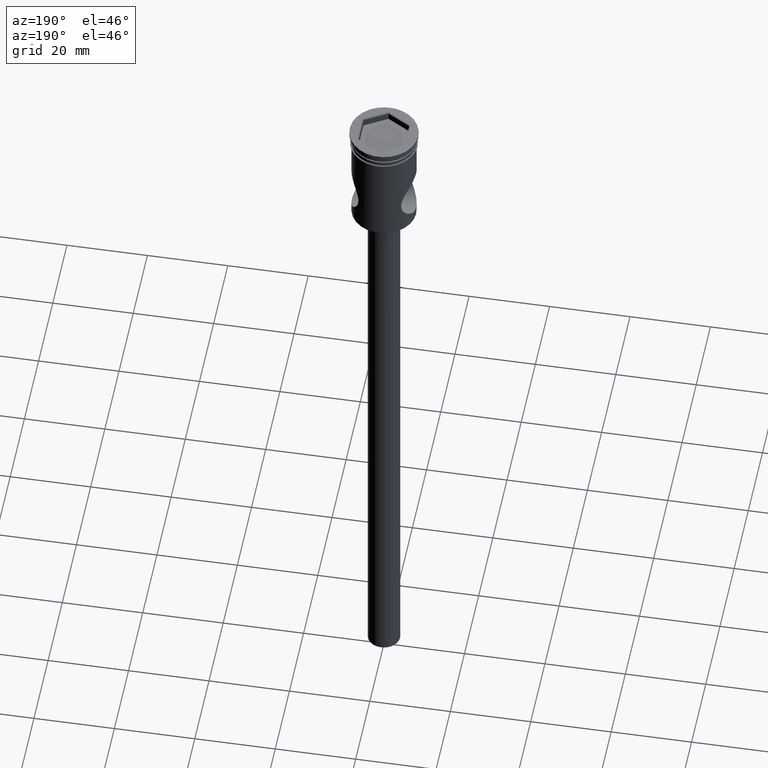
[diagram: clean part render]
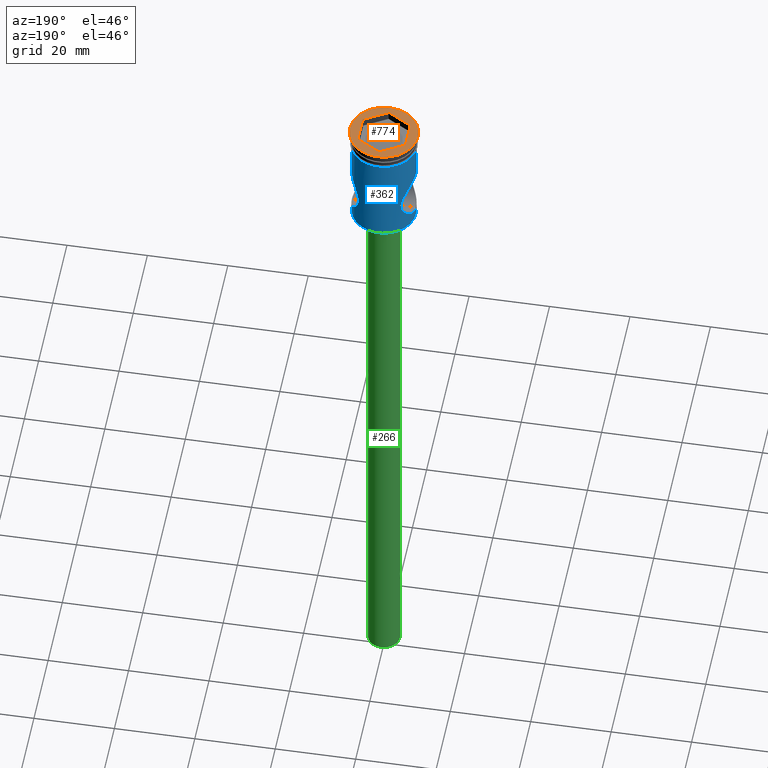
[diagram: same view with three faces highlighted in distinct colors, each labeled with its STEP entity id]
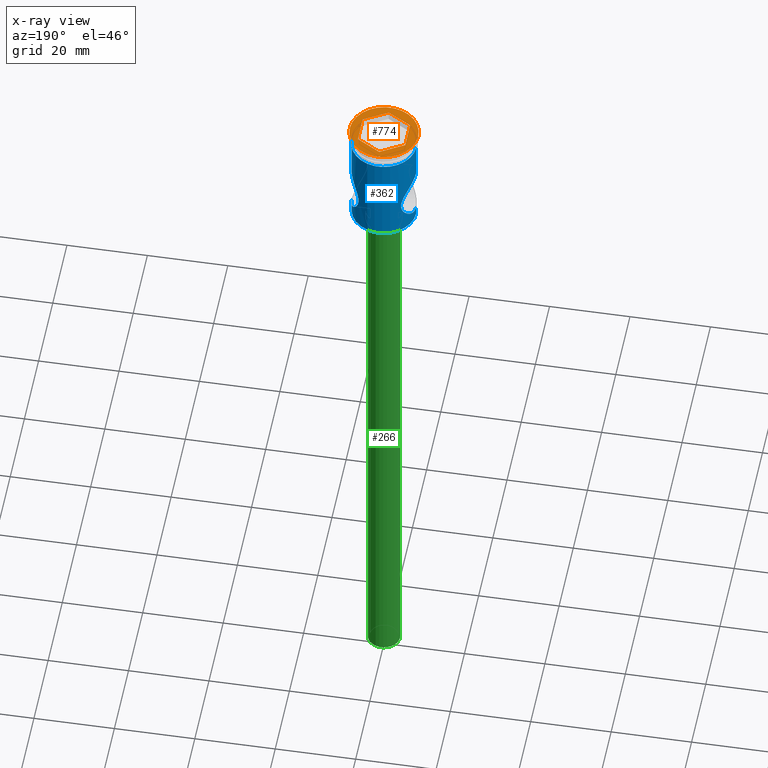
[diagram: x-ray of the same camera — body ghosted, the three highlighted faces saturated]
A machine part, auxiliary view with three faces highlighted in distinct colors.
The next image is the same camera in x-ray (body ghosted, the three faces saturated) — at least one of them is partly hidden behind the body in this view.
Their STEP definitions:

[orange] entity #774 — the highlighted planar face has unit normal (0, -0, 1).
#11 = CARTESIAN_POINT ( 'NONE',  ( -2.007024465603783099E-15, -6.812733176437579807, 0.000000000000000000 ) ) ;
#18 = VECTOR ( 'NONE', #1480, 1000.000000000000000 ) ;
#41 = AXIS2_PLACEMENT_3D ( 'NONE', #207, #1154, #679 ) ;
#59 = EDGE_LOOP ( 'NONE', ( #1249, #1351 ) ) ;
#81 = VECTOR ( 'NONE', #702, 1000.000000000000000 ) ;
#89 = ORIENTED_EDGE ( 'NONE', *, *, #1296, .T. ) ;
#118 = EDGE_CURVE ( 'NONE', #1260, #1479, #769, .T. ) ;
#134 = VECTOR ( 'NONE', #239, 1000.000000000000000 ) ;
#142 = ORIENTED_EDGE ( 'NONE', *, *, #1251, .T. ) ;
#159 = CARTESIAN_POINT ( 'NONE',  ( -0.09999999999999933942, 6.754998149518617545, 0.000000000000000000 ) ) ;
#170 = CARTESIAN_POINT ( 'NONE',  ( -5.899999999999997691, -3.406366588218790348, 0.000000000000000000 ) ) ;
#199 = CARTESIAN_POINT ( 'NONE',  ( 5.899999999999998579, 3.406366588218789904, 0.000000000000000000 ) ) ;
#207 = CARTESIAN_POINT ( 'NONE',  ( 0.000000000000000000, 0.000000000000000000, 0.000000000000000000 ) ) ;
#224 = EDGE_CURVE ( 'NONE', #841, #1109, #245, .T. ) ;
#229 = CARTESIAN_POINT ( 'NONE',  ( 5.899999999999996803, -3.290896534380868488, 0.000000000000000000 ) ) ;
#239 = DIRECTION ( 'NONE',  ( -0.8660254037844387076, -0.4999999999999998890, 0.000000000000000000 ) ) ;
#245 = CIRCLE ( 'NONE', #824, 8.500000000000000000 ) ;
#306 = ORIENTED_EDGE ( 'NONE', *, *, #118, .T. ) ;
#330 = CARTESIAN_POINT ( 'NONE',  ( -5.899999999999996803, 3.290896534380865823, 0.000000000000000000 ) ) ;
#368 = EDGE_LOOP ( 'NONE', ( #89, #306, #142, #1253, #1115, #806 ) ) ;
#424 = EDGE_CURVE ( 'NONE', #916, #1221, #1411, .T. ) ;
#430 = CARTESIAN_POINT ( 'NONE',  ( 5.799999999999998934, 3.464101615137752610, 0.000000000000000000 ) ) ;
#470 = CARTESIAN_POINT ( 'NONE',  ( 5.899999999999996803, -3.406366588218789460, 0.000000000000000000 ) ) ;
#529 = EDGE_CURVE ( 'NONE', #668, #916, #1499, .T. ) ;
#573 = FACE_BOUND ( 'NONE', #368, .T. ) ;
#629 = LINE ( 'NONE', #159, #708 ) ;
#668 = VERTEX_POINT ( 'NONE', #869 ) ;
#672 = FACE_OUTER_BOUND ( 'NONE', #59, .T. ) ;
#679 = DIRECTION ( 'NONE',  ( 1.000000000000000000, 0.000000000000000000, 0.000000000000000000 ) ) ;
#702 = DIRECTION ( 'NONE',  ( -3.953459470360945130E-16, -1.000000000000000000, 0.000000000000000000 ) ) ;
#705 = CIRCLE ( 'NONE', #1294, 8.500000000000000000 ) ;
#708 = VECTOR ( 'NONE', #1239, 1000.000000000000114 ) ;
#729 = LINE ( 'NONE', #1225, #1364 ) ;
#763 = VERTEX_POINT ( 'NONE', #11 ) ;
#769 = LINE ( 'NONE', #330, #18 ) ;
#774 = ADVANCED_FACE ( 'NONE', ( #573, #672 ), #1160, .T. ) ;
#786 = EDGE_CURVE ( 'NONE', #1109, #841, #705, .T. ) ;
#806 = ORIENTED_EDGE ( 'NONE', *, *, #1173, .T. ) ;
#822 = CARTESIAN_POINT ( 'NONE',  ( -8.500000000000000000, 1.040949779275250140E-15, 0.000000000000000000 ) ) ;
#824 = AXIS2_PLACEMENT_3D ( 'NONE', #1460, #1485, #1350 ) ;
#829 = LINE ( 'NONE', #941, #134 ) ;
#841 = VERTEX_POINT ( 'NONE', #924 ) ;
#869 = CARTESIAN_POINT ( 'NONE',  ( -5.954239560892097332E-16, 6.812733176437579807, 0.000000000000000000 ) ) ;
#900 = DIRECTION ( 'NONE',  ( 0.8660254037844388186, -0.4999999999999997780, 0.000000000000000000 ) ) ;
#910 = DIRECTION ( 'NONE',  ( 1.000000000000000000, 0.000000000000000000, 0.000000000000000000 ) ) ;
#916 = VERTEX_POINT ( 'NONE', #199 ) ;
#924 = CARTESIAN_POINT ( 'NONE',  ( 8.500000000000000000, 0.000000000000000000, 0.000000000000000000 ) ) ;
#930 = CARTESIAN_POINT ( 'NONE',  ( -5.899999999999996803, 3.406366588218790348, 0.000000000000000000 ) ) ;
#941 = CARTESIAN_POINT ( 'NONE',  ( 0.09999999999999691080, -6.754998149518617545, 0.000000000000000000 ) ) ;
#992 = DIRECTION ( 'NONE',  ( -0.8660254037844385966, 0.5000000000000001110, 0.000000000000000000 ) ) ;
#1109 = VERTEX_POINT ( 'NONE', #822 ) ;
#1115 = ORIENTED_EDGE ( 'NONE', *, *, #424, .T. ) ;
#1154 = DIRECTION ( 'NONE',  ( 0.000000000000000000, -0.000000000000000000, 1.000000000000000000 ) ) ;
#1160 = PLANE ( 'NONE',  #41 ) ;
#1173 = EDGE_CURVE ( 'NONE', #1221, #763, #829, .T. ) ;
#1221 = VERTEX_POINT ( 'NONE', #470 ) ;
#1225 = CARTESIAN_POINT ( 'NONE',  ( -5.799999999999998934, -3.464101615137751722, 0.000000000000000000 ) ) ;
#1239 = DIRECTION ( 'NONE',  ( 0.8660254037844385966, 0.4999999999999999445, 0.000000000000000000 ) ) ;
#1249 = ORIENTED_EDGE ( 'NONE', *, *, #224, .T. ) ;
#1251 = EDGE_CURVE ( 'NONE', #1479, #668, #629, .T. ) ;
#1253 = ORIENTED_EDGE ( 'NONE', *, *, #529, .T. ) ;
#1260 = VERTEX_POINT ( 'NONE', #170 ) ;
#1294 = AXIS2_PLACEMENT_3D ( 'NONE', #1519, #1508, #910 ) ;
#1296 = EDGE_CURVE ( 'NONE', #763, #1260, #729, .T. ) ;
#1350 = DIRECTION ( 'NONE',  ( 1.000000000000000000, 0.000000000000000000, 0.000000000000000000 ) ) ;
#1351 = ORIENTED_EDGE ( 'NONE', *, *, #786, .T. ) ;
#1364 = VECTOR ( 'NONE', #992, 1000.000000000000114 ) ;
#1411 = LINE ( 'NONE', #229, #81 ) ;
#1460 = CARTESIAN_POINT ( 'NONE',  ( 0.000000000000000000, 0.000000000000000000, 0.000000000000000000 ) ) ;
#1479 = VERTEX_POINT ( 'NONE', #930 ) ;
#1480 = DIRECTION ( 'NONE',  ( 1.317819823453649034E-16, 1.000000000000000000, 0.000000000000000000 ) ) ;
#1485 = DIRECTION ( 'NONE',  ( -0.000000000000000000, -0.000000000000000000, 1.000000000000000000 ) ) ;
#1486 = VECTOR ( 'NONE', #900, 1000.000000000000114 ) ;
#1499 = LINE ( 'NONE', #430, #1486 ) ;
#1508 = DIRECTION ( 'NONE',  ( -0.000000000000000000, -0.000000000000000000, 1.000000000000000000 ) ) ;
#1519 = CARTESIAN_POINT ( 'NONE',  ( 0.000000000000000000, 0.000000000000000000, 0.000000000000000000 ) ) ;

[blue] entity #362 — the highlighted cylindrical surface (edge-blend (fillet) strip) has radius 8 mm, axis along (-0, -0, 1).
#5 = VERTEX_POINT ( 'NONE', #932 ) ;
#10 = ORIENTED_EDGE ( 'NONE', *, *, #838, .F. ) ;
#13 = FACE_OUTER_BOUND ( 'NONE', #1326, .T. ) ;
#19 = CARTESIAN_POINT ( 'NONE',  ( -6.096832542624039064, 5.181052271612227145, -22.03201423696314265 ) ) ;
#27 = CARTESIAN_POINT ( 'NONE',  ( 5.303431297491207452, 5.989541423528398134, -18.59082079987659952 ) ) ;
#28 = DIRECTION ( 'NONE',  ( -0.000000000000000000, -0.000000000000000000, 1.000000000000000000 ) ) ;
#35 = EDGE_CURVE ( 'NONE', #255, #1107, #1058, .T. ) ;
#71 = CARTESIAN_POINT ( 'NONE',  ( 6.428305707969257377, 4.769535948342530141, -15.34044057477574263 ) ) ;
#74 = CARTESIAN_POINT ( 'NONE',  ( 7.999999999999996447, 0.000000000000000000, 0.000000000000000000 ) ) ;
#88 = CARTESIAN_POINT ( 'NONE',  ( -7.959626168830804538, 0.8288481689406965724, -24.94607871179749026 ) ) ;
#98 = ORIENTED_EDGE ( 'NONE', *, *, #771, .T. ) ;
#104 = CARTESIAN_POINT ( 'NONE',  ( -7.390764062597866335, 3.081727328898060225, -24.16219223809560290 ) ) ;
#106 = LINE ( 'NONE', #1483, #439 ) ;
#119 = B_SPLINE_CURVE_WITH_KNOTS ( 'NONE', 3,
 ( #1271, #790, #1289, #955, #1056, #714, #352, #931, #1050, #1400, #584, #237, #799, #334, #1179, #1089, #590, #367, #1192, #460, #1295, #1079, #1065, #141, #1414, #963, #497, #973, #363, #813, #455, #19, #1313, #357, #1190, #922, #794, #680, #709, #104, #1292, #688, #579, #925, #681, #447, #88, #537, #544, #1039 ),
 .UNSPECIFIED., .F., .F.,
 ( 4, 2, 2, 2, 2, 2, 2, 2, 2, 2, 2, 2, 2, 2, 2, 2, 2, 2, 2, 2, 2, 2, 2, 2, 4 ),
 ( 0.01965158138171595875, 0.02026440806685870719, 0.02087723475200145562, 0.02149006143714420405, 0.02210288812228695249, 0.02332854149257245283, 0.02455419486285795316, 0.02577984823314345697, 0.02700550160342895384, 0.02761832828857171268, 0.02823115497371446458, 0.02884398165885721996, 0.02945680834399997533, 0.03068246171428548608, 0.03190811508457099682, 0.03252094176971375566, 0.03313376845485650757, 0.03435942182514201831, 0.03497224851028477716, 0.03558507519542753600, 0.03681072856571306062, 0.03742355525085581947, 0.03803638193599857831, 0.03864920862114134409, 0.03926203530628410293 ),
 .UNSPECIFIED. ) ;
#129 = CARTESIAN_POINT ( 'NONE',  ( 7.095043372362062506, 3.712647680833710329, -23.72917063698660911 ) ) ;
#140 = ORIENTED_EDGE ( 'NONE', *, *, #1164, .T. ) ;
#141 = CARTESIAN_POINT ( 'NONE',  ( -5.303887827319022641, 5.989138807782576457, -18.58493257538529875 ) ) ;
#145 = CARTESIAN_POINT ( 'NONE',  ( 7.748219018226238042, 2.000946089715710308, -13.33991246093565231 ) ) ;
#146 = CARTESIAN_POINT ( 'NONE',  ( -7.999999999999996447, 0.000000000000000000, -25.00000000000000000 ) ) ;
#180 = LINE ( 'NONE', #74, #1197 ) ;
#212 = CARTESIAN_POINT ( 'NONE',  ( 5.527830583457348013, 5.783619756404971390, -20.60895157510370268 ) ) ;
#228 = AXIS2_PLACEMENT_3D ( 'NONE', #1407, #28, #1324 ) ;
#237 = CARTESIAN_POINT ( 'NONE',  ( -7.094299755750172132, 3.714105956844027556, -14.27193636968089585 ) ) ;
#238 = CARTESIAN_POINT ( 'NONE',  ( 7.967750386662298290, 0.8225813075346128933, -24.95718867133071939 ) ) ;
#244 = CARTESIAN_POINT ( 'NONE',  ( 5.717260744181801968, 5.596776624407745260, -16.82891779856496584 ) ) ;
#255 = VERTEX_POINT ( 'NONE', #652 ) ;
#280 = EDGE_CURVE ( 'NONE', #5, #554, #1139, .T. ) ;
#287 = CARTESIAN_POINT ( 'NONE',  ( 5.291508588819593406, 5.999994737873667106, -19.40979141361455262 ) ) ;
#310 = CARTESIAN_POINT ( 'NONE',  ( -8.000000000000000000, 9.797174393178825657E-16, -3.999999999999997335 ) ) ;
#324 = CARTESIAN_POINT ( 'NONE',  ( 5.933514355146050967, 5.370016379611009860, -21.70410386792428170 ) ) ;
#329 = CARTESIAN_POINT ( 'NONE',  ( 7.584438918382732986, 2.551936178765121799, -24.43384157505064636 ) ) ;
#334 = CARTESIAN_POINT ( 'NONE',  ( -6.599412474671010109, 4.532668071879429661, -15.05083651367930742 ) ) ;
#341 = AXIS2_PLACEMENT_3D ( 'NONE', #1024, #1477, #1375 ) ;
#342 = CARTESIAN_POINT ( 'NONE',  ( 7.522790365168889437, 2.727851025529601348, -24.34760159016909142 ) ) ;
#352 = CARTESIAN_POINT ( 'NONE',  ( -7.837238599853709964, 1.617585761159322510, -13.21864966473142644 ) ) ;
#357 = CARTESIAN_POINT ( 'NONE',  ( -6.428408221799558397, 4.769379950103072474, -22.65971221525529344 ) ) ;
#360 = CARTESIAN_POINT ( 'NONE',  ( 7.095827365271405895, 3.710952672189014923, -14.26968452820924682 ) ) ;
#362 = ADVANCED_FACE ( 'NONE', ( #13 ), #1428, .T. ) ;
#363 = CARTESIAN_POINT ( 'NONE',  ( -5.643916026891298898, 5.673596022587067189, -20.98979656833889251 ) ) ;
#365 = DIRECTION ( 'NONE',  ( -0.000000000000000000, -0.000000000000000000, 1.000000000000000000 ) ) ;
#367 = CARTESIAN_POINT ( 'NONE',  ( -5.717670742267800144, 5.596336919971244939, -16.82796284348983917 ) ) ;
#379 = CARTESIAN_POINT ( 'NONE',  ( 5.934194063793421847, 5.369288296893337531, -16.29430799600839208 ) ) ;
#434 = CARTESIAN_POINT ( 'NONE',  ( 6.600129246405443517, 4.531693863514761667, -22.95038707538193634 ) ) ;
#436 = CARTESIAN_POINT ( 'NONE',  ( -7.999999999999996447, 9.797174393178821713E-16, 0.000000000000000000 ) ) ;
#439 = VECTOR ( 'NONE', #912, 1000.000000000000000 ) ;
#447 = CARTESIAN_POINT ( 'NONE',  ( -7.935826362832939296, 1.031097151778473719, -24.91423007022369518 ) ) ;
#455 = CARTESIAN_POINT ( 'NONE',  ( -5.937193840094636244, 5.363245192895813140, -21.69666719771004892 ) ) ;
#460 = CARTESIAN_POINT ( 'NONE',  ( -5.528728542356219577, 5.782767647903219732, -17.38791116192859931 ) ) ;
#490 = CARTESIAN_POINT ( 'NONE',  ( 6.935409427810199645, 3.999736926290286210, -14.51184028921589508 ) ) ;
#497 = CARTESIAN_POINT ( 'NONE',  ( -5.340955530264040796, 5.957261304845339112, -19.82204812401646876 ) ) ;
#500 = CARTESIAN_POINT ( 'NONE',  ( 5.527877811876816594, 5.783575200193208588, -17.39087967744914920 ) ) ;
#537 = CARTESIAN_POINT ( 'NONE',  ( -7.991786201921672550, 0.4171226887462312072, -24.98906086098487123 ) ) ;
#539 = CARTESIAN_POINT ( 'NONE',  ( -7.999999999999996447, 9.797174393178821713E-16, 0.000000000000000000 ) ) ;
#544 = CARTESIAN_POINT ( 'NONE',  ( -8.000000000000000000, 0.2076584939606447855, -25.00000000000001066 ) ) ;
#549 = DIRECTION ( 'NONE',  ( -0.000000000000000000, -0.000000000000000000, 1.000000000000000000 ) ) ;
#550 = CARTESIAN_POINT ( 'NONE',  ( -7.999999999999996447, 9.797174356432676922E-16, -13.00000000000000533 ) ) ;
#554 = VERTEX_POINT ( 'NONE', #146 ) ;
#577 = CARTESIAN_POINT ( 'NONE',  ( 7.999999999999996447, 0.000000000000000000, -25.00000000000000000 ) ) ;
#579 = CARTESIAN_POINT ( 'NONE',  ( -7.746242821178788596, 2.008647717025523693, -24.65738428818450245 ) ) ;
#584 = CARTESIAN_POINT ( 'NONE',  ( -7.392840448243055640, 3.077268624920922235, -13.83477139314359405 ) ) ;
#590 = CARTESIAN_POINT ( 'NONE',  ( -5.932300773519818549, 5.371293148560216224, -16.29886334358921118 ) ) ;
#594 = CARTESIAN_POINT ( 'NONE',  ( 6.933994888437764459, 4.002208169122734027, -23.48599343389724581 ) ) ;
#608 = CARTESIAN_POINT ( 'NONE',  ( 7.968510204580123713, 0.8173127755210328749, -13.04179007278580293 ) ) ;
#644 = CARTESIAN_POINT ( 'NONE',  ( 6.095265202635740565, 5.188384097884398471, -15.96330462474424650 ) ) ;
#652 = CARTESIAN_POINT ( 'NONE',  ( 7.999999999999996447, 0.000000000000000000, -25.00000000000000000 ) ) ;
#670 = CARTESIAN_POINT ( 'NONE',  ( 5.474514516413027998, 5.833807645266261943, -20.41669993575522923 ) ) ;
#674 = EDGE_CURVE ( 'NONE', #1107, #860, #180, .T. ) ;
#677 = CARTESIAN_POINT ( 'NONE',  ( 5.717181671610946481, 5.596851870810901630, -21.17084374095739463 ) ) ;
#680 = CARTESIAN_POINT ( 'NONE',  ( -7.092607887154919410, 3.704399776580871606, -23.72372303530257298 ) ) ;
#681 = CARTESIAN_POINT ( 'NONE',  ( -7.873944427309549354, 1.428810887794780049, -24.83093286763472918 ) ) ;
#683 = VECTOR ( 'NONE', #942, 1000.000000000000000 ) ;
#688 = CARTESIAN_POINT ( 'NONE',  ( -7.694334963991131815, 2.198537974230715175, -24.58621182590502485 ) ) ;
#698 = CARTESIAN_POINT ( 'NONE',  ( 7.318622431870950074, 3.235523761949524069, -24.05653912422262408 ) ) ;
#706 = CARTESIAN_POINT ( 'NONE',  ( 7.837185563733797267, 1.617777997116385258, -13.21872241145037563 ) ) ;
#709 = CARTESIAN_POINT ( 'NONE',  ( -7.169789722930493880, 3.553058473854127985, -23.83860449815402305 ) ) ;
#714 = CARTESIAN_POINT ( 'NONE',  ( -7.875112291323477898, 1.422312626392037371, -13.16749109191733957 ) ) ;
#717 = DIRECTION ( 'NONE',  ( 1.000000000000000000, 0.000000000000000000, 0.000000000000000000 ) ) ;
#724 = ORIENTED_EDGE ( 'NONE', *, *, #35, .F. ) ;
#733 = CIRCLE ( 'NONE', #228, 7.999999999999996447 ) ;
#771 = EDGE_CURVE ( 'NONE', #1008, #831, #1085, .T. ) ;
#790 = CARTESIAN_POINT ( 'NONE',  ( -8.000000000000005329, 0.2050786897151790633, -13.00000000000000355 ) ) ;
#794 = CARTESIAN_POINT ( 'NONE',  ( -6.932510933914958429, 3.995992554649490547, -23.47975228357175581 ) ) ;
#799 = CARTESIAN_POINT ( 'NONE',  ( -6.932348065000020654, 4.004981294134720926, -14.51657531287133551 ) ) ;
#807 = EDGE_CURVE ( 'NONE', #860, #831, #1263, .T. ) ;
#811 = CARTESIAN_POINT ( 'NONE',  ( 7.390068150002869096, 3.069273339745732798, -24.15922233971244637 ) ) ;
#813 = CARTESIAN_POINT ( 'NONE',  ( -5.859839614964069909, 5.447306643968808260, -21.52271597277527704 ) ) ;
#814 = CARTESIAN_POINT ( 'NONE',  ( 7.999999999999996447, 0.000000000000000000, -27.30000000000000426 ) ) ;
#816 = CARTESIAN_POINT ( 'NONE',  ( 7.999999999999998224, 0.4161879994587696641, -25.00000000000000711 ) ) ;
#831 = VERTEX_POINT ( 'NONE', #310 ) ;
#834 = EDGE_CURVE ( 'NONE', #1008, #554, #119, .T. ) ;
#838 = EDGE_CURVE ( 'NONE', #892, #255, #106, .T. ) ;
#839 = CARTESIAN_POINT ( 'NONE',  ( 7.697512327894634687, 2.187332674909133967, -13.40941737064048489 ) ) ;
#860 = VERTEX_POINT ( 'NONE', #1150 ) ;
#866 = CARTESIAN_POINT ( 'NONE',  ( 7.528683465599922187, 2.731923562265712313, -13.64343887222187135 ) ) ;
#892 = VERTEX_POINT ( 'NONE', #814 ) ;
#907 = CARTESIAN_POINT ( 'NONE',  ( 6.426683704192725166, 4.771690908225659555, -22.65669169386860204 ) ) ;
#912 = DIRECTION ( 'NONE',  ( -0.000000000000000000, -0.000000000000000000, 1.000000000000000000 ) ) ;
#922 = CARTESIAN_POINT ( 'NONE',  ( -6.849379830468325991, 4.136484081211206920, -23.35028667483849318 ) ) ;
#925 = CARTESIAN_POINT ( 'NONE',  ( -7.835858405065169840, 1.624274161447295306, -24.77948060674688691 ) ) ;
#929 = ORIENTED_EDGE ( 'NONE', *, *, #674, .F. ) ;
#931 = CARTESIAN_POINT ( 'NONE',  ( -7.748015674478848425, 2.001785621332211385, -13.34018995724741607 ) ) ;
#932 = CARTESIAN_POINT ( 'NONE',  ( -7.999999999999996447, 9.797174393178821713E-16, -27.30000000000000426 ) ) ;
#942 = DIRECTION ( 'NONE',  ( -0.000000000000000000, -0.000000000000000000, 1.000000000000000000 ) ) ;
#955 = CARTESIAN_POINT ( 'NONE',  ( -7.960178332295269499, 0.8233858112076458680, -13.05318252701360215 ) ) ;
#956 = CARTESIAN_POINT ( 'NONE',  ( 6.602014270987715427, 4.528930003495660550, -15.04648686704185856 ) ) ;
#963 = CARTESIAN_POINT ( 'NONE',  ( -5.291564416442851915, 5.999945502536777830, -19.41375567364516641 ) ) ;
#973 = CARTESIAN_POINT ( 'NONE',  ( -5.519437917285256567, 5.792285672141820108, -20.61683396324643169 ) ) ;
#980 = CARTESIAN_POINT ( 'NONE',  ( 5.649101405964834122, 5.665229783906036154, -17.01400357395085550 ) ) ;
#991 = VECTOR ( 'NONE', #549, 1000.000000000000000 ) ;
#1003 = DIRECTION ( 'NONE',  ( -0.000000000000000000, -0.000000000000000000, 1.000000000000000000 ) ) ;
#1007 = CARTESIAN_POINT ( 'NONE',  ( 7.392183792285975663, 3.078563709593460818, -13.83574790663121590 ) ) ;
#1008 = VERTEX_POINT ( 'NONE', #550 ) ;
#1024 = CARTESIAN_POINT ( 'NONE',  ( 0.000000000000000000, 0.000000000000000000, -3.999999999999997335 ) ) ;
#1039 = CARTESIAN_POINT ( 'NONE',  ( -7.999999999999996447, 0.000000000000000000, -25.00000000000000000 ) ) ;
#1050 = CARTESIAN_POINT ( 'NONE',  ( -7.696444758544893183, 2.191140728972409857, -13.41088448561661650 ) ) ;
#1056 = CARTESIAN_POINT ( 'NONE',  ( -7.936580320267932365, 1.025211991777383647, -13.08475919831038858 ) ) ;
#1058 = B_SPLINE_CURVE_WITH_KNOTS ( 'NONE', 3,
 ( #577, #816, #238, #1406, #1076, #329, #342, #811, #698, #129, #594, #434, #907, #1384, #324, #677, #1272, #212, #670, #1166, #287, #1092, #27, #1311, #1128, #1243, #500, #980, #244, #379, #644, #71, #956, #490, #360, #1007, #866, #839, #145, #706, #1202, #608, #1469, #1357 ),
 .UNSPECIFIED., .F., .F.,
 ( 4, 2, 2, 2, 2, 2, 2, 2, 2, 2, 2, 2, 2, 2, 2, 2, 2, 2, 2, 2, 2, 4 ),
 ( 0.000000000000000000, 0.001228223836357238098, 0.002456447672714476196, 0.003070559590893096654, 0.003684671509071716679, 0.004912895345428957596, 0.006141119181786197645, 0.007369343018143437694, 0.007983454936322062490, 0.008597566854500688152, 0.009825790690857941212, 0.01043990260903657034, 0.01105401452721520121, 0.01166812644539383034, 0.01228223836357246121, 0.01351046219992971080, 0.01473868603628695692, 0.01596690987264420825, 0.01719513370900145610, 0.01780924562718008350, 0.01842335754535870743, 0.01965158138171595528 ),
 .UNSPECIFIED. ) ;
#1065 = CARTESIAN_POINT ( 'NONE',  ( -5.351298131410346492, 5.946815791029208320, -18.17692857331259404 ) ) ;
#1072 = ORIENTED_EDGE ( 'NONE', *, *, #834, .F. ) ;
#1076 = CARTESIAN_POINT ( 'NONE',  ( 7.753317466694376492, 2.007594612796118838, -24.66794618566808239 ) ) ;
#1079 = CARTESIAN_POINT ( 'NONE',  ( -5.386132118162890059, 5.915506229595402843, -17.97664524532638453 ) ) ;
#1085 = LINE ( 'NONE', #436, #683 ) ;
#1089 = CARTESIAN_POINT ( 'NONE',  ( -6.092548161367386861, 5.191587824295140763, -15.96869401757640716 ) ) ;
#1092 = CARTESIAN_POINT ( 'NONE',  ( 5.291499639625487639, 6.000002630321015218, -18.79521987294451435 ) ) ;
#1107 = VERTEX_POINT ( 'NONE', #1203 ) ;
#1117 = ORIENTED_EDGE ( 'NONE', *, *, #280, .T. ) ;
#1128 = CARTESIAN_POINT ( 'NONE',  ( 5.385705311345802215, 5.915896059439944565, -17.97877459268462985 ) ) ;
#1139 = LINE ( 'NONE', #539, #991 ) ;
#1150 = CARTESIAN_POINT ( 'NONE',  ( 8.000000000000000000, 0.000000000000000000, -3.999999999999997335 ) ) ;
#1164 = EDGE_CURVE ( 'NONE', #892, #5, #733, .T. ) ;
#1166 = CARTESIAN_POINT ( 'NONE',  ( 5.341952933818355120, 5.956343020881682548, -19.82666753736794618 ) ) ;
#1179 = CARTESIAN_POINT ( 'NONE',  ( -6.426120009460147386, 4.772495035090829951, -15.34422494722665498 ) ) ;
#1190 = CARTESIAN_POINT ( 'NONE',  ( -6.598787025335902889, 4.533655066149032464, -22.94815787054485412 ) ) ;
#1192 = CARTESIAN_POINT ( 'NONE',  ( -5.650483228049789197, 5.663857365279294953, -17.01003722717182498 ) ) ;
#1197 = VECTOR ( 'NONE', #1003, 1000.000000000000000 ) ;
#1202 = CARTESIAN_POINT ( 'NONE',  ( 7.875627092851996913, 1.419784017982118174, -13.16679506876979033 ) ) ;
#1203 = CARTESIAN_POINT ( 'NONE',  ( 7.999999999999996447, 3.674711311745778243E-24, -13.00000000000000533 ) ) ;
#1220 = AXIS2_PLACEMENT_3D ( 'NONE', #1301, #365, #717 ) ;
#1243 = CARTESIAN_POINT ( 'NONE',  ( 5.474412988877314312, 5.833905236971784980, -17.58356884929881048 ) ) ;
#1263 = CIRCLE ( 'NONE', #341, 8.000000000000000000 ) ;
#1271 = CARTESIAN_POINT ( 'NONE',  ( -7.999999999999996447, 9.797174356432676922E-16, -13.00000000000000533 ) ) ;
#1272 = CARTESIAN_POINT ( 'NONE',  ( 5.648998666191807239, 5.665331633315698667, -20.98569890523691583 ) ) ;
#1289 = CARTESIAN_POINT ( 'NONE',  ( -7.991997215772791208, 0.4127757007396791189, -13.01065792661720621 ) ) ;
#1292 = CARTESIAN_POINT ( 'NONE',  ( -7.524109323248031167, 2.744670825570129757, -24.35015039146814786 ) ) ;
#1295 = CARTESIAN_POINT ( 'NONE',  ( -5.474655730134190712, 5.833676180865436933, -17.58271699258815346 ) ) ;
#1301 = CARTESIAN_POINT ( 'NONE',  ( 0.000000000000000000, 0.000000000000000000, 0.000000000000000000 ) ) ;
#1311 = CARTESIAN_POINT ( 'NONE',  ( 5.350380422783078238, 5.947639811124362907, -18.18292303966837764 ) ) ;
#1313 = CARTESIAN_POINT ( 'NONE',  ( -6.178944471944528338, 5.083158423289838801, -22.19321469611284314 ) ) ;
#1324 = DIRECTION ( 'NONE',  ( -1.000000000000000000, 0.000000000000000000, 0.000000000000000000 ) ) ;
#1326 = EDGE_LOOP ( 'NONE', ( #140, #1117, #1072, #98, #1419, #929, #724, #10 ) ) ;
#1357 = CARTESIAN_POINT ( 'NONE',  ( 7.999999999999996447, 3.674711311745778243E-24, -13.00000000000000533 ) ) ;
#1375 = DIRECTION ( 'NONE',  ( 1.000000000000000000, 0.000000000000000000, 0.000000000000000000 ) ) ;
#1384 = CARTESIAN_POINT ( 'NONE',  ( 6.094205644570493519, 5.189600670481776312, -22.03454661334871290 ) ) ;
#1400 = CARTESIAN_POINT ( 'NONE',  ( -7.526744538711455768, 2.737435864263675800, -13.64615235571891283 ) ) ;
#1406 = CARTESIAN_POINT ( 'NONE',  ( 7.845111153738295151, 1.617379738080571894, -24.79213429196722984 ) ) ;
#1407 = CARTESIAN_POINT ( 'NONE',  ( 0.000000000000000000, 0.000000000000000000, -27.30000000000000426 ) ) ;
#1414 = CARTESIAN_POINT ( 'NONE',  ( -5.291471813663452650, 6.000027170513403618, -18.79430872448704548 ) ) ;
#1419 = ORIENTED_EDGE ( 'NONE', *, *, #807, .F. ) ;
#1428 = CYLINDRICAL_SURFACE ( 'NONE', #1220, 7.999999999999996447 ) ;
#1469 = CARTESIAN_POINT ( 'NONE',  ( 8.000000000000005329, 0.4110175701281992278, -13.00000000000000000 ) ) ;
#1477 = DIRECTION ( 'NONE',  ( -0.000000000000000000, -0.000000000000000000, 1.000000000000000000 ) ) ;
#1483 = CARTESIAN_POINT ( 'NONE',  ( 7.999999999999996447, 0.000000000000000000, 0.000000000000000000 ) ) ;

[green] entity #266 — the highlighted cylindrical surface (edge-blend (fillet) strip) has radius 4 mm, axis along (-0, -0, 1).
#63 = VERTEX_POINT ( 'NONE', #524 ) ;
#103 = CARTESIAN_POINT ( 'NONE',  ( 0.000000000000000000, 0.000000000000000000, -177.5000000000000000 ) ) ;
#198 = AXIS2_PLACEMENT_3D ( 'NONE', #1282, #221, #575 ) ;
#209 = FACE_OUTER_BOUND ( 'NONE', #462, .T. ) ;
#221 = DIRECTION ( 'NONE',  ( -0.000000000000000000, -0.000000000000000000, 1.000000000000000000 ) ) ;
#266 = ADVANCED_FACE ( 'NONE', ( #209 ), #552, .T. ) ;
#275 = CARTESIAN_POINT ( 'NONE',  ( 0.000000000000000000, 0.000000000000000000, -30.50000000000000000 ) ) ;
#290 = ORIENTED_EDGE ( 'NONE', *, *, #1082, .F. ) ;
#301 = LINE ( 'NONE', #551, #514 ) ;
#348 = ORIENTED_EDGE ( 'NONE', *, *, #796, .F. ) ;
#429 = LINE ( 'NONE', #784, #496 ) ;
#462 = EDGE_LOOP ( 'NONE', ( #348, #1416, #666, #290 ) ) ;
#468 = AXIS2_PLACEMENT_3D ( 'NONE', #103, #560, #1403 ) ;
#496 = VECTOR ( 'NONE', #1273, 1000.000000000000000 ) ;
#502 = VERTEX_POINT ( 'NONE', #1346 ) ;
#514 = VECTOR ( 'NONE', #1031, 1000.000000000000000 ) ;
#524 = CARTESIAN_POINT ( 'NONE',  ( 4.000000000000000000, 0.000000000000000000, -177.5000000000000000 ) ) ;
#551 = CARTESIAN_POINT ( 'NONE',  ( -4.000000000000000000, 4.898587196589412829E-16, -177.5000000000000000 ) ) ;
#552 = CYLINDRICAL_SURFACE ( 'NONE', #198, 4.000000000000000000 ) ;
#560 = DIRECTION ( 'NONE',  ( 0.000000000000000000, 0.000000000000000000, -1.000000000000000000 ) ) ;
#575 = DIRECTION ( 'NONE',  ( 1.000000000000000000, 0.000000000000000000, 0.000000000000000000 ) ) ;
#591 = EDGE_CURVE ( 'NONE', #502, #1471, #301, .T. ) ;
#666 = ORIENTED_EDGE ( 'NONE', *, *, #1452, .T. ) ;
#732 = VERTEX_POINT ( 'NONE', #1057 ) ;
#784 = CARTESIAN_POINT ( 'NONE',  ( 4.000000000000000000, 0.000000000000000000, -177.5000000000000000 ) ) ;
#796 = EDGE_CURVE ( 'NONE', #502, #63, #1143, .T. ) ;
#863 = DIRECTION ( 'NONE',  ( 0.000000000000000000, 0.000000000000000000, -1.000000000000000000 ) ) ;
#1031 = DIRECTION ( 'NONE',  ( -0.000000000000000000, -0.000000000000000000, 1.000000000000000000 ) ) ;
#1057 = CARTESIAN_POINT ( 'NONE',  ( 4.000000000000000000, 0.000000000000000000, -30.50000000000000000 ) ) ;
#1082 = EDGE_CURVE ( 'NONE', #63, #732, #429, .T. ) ;
#1143 = CIRCLE ( 'NONE', #468, 4.000000000000000000 ) ;
#1265 = AXIS2_PLACEMENT_3D ( 'NONE', #275, #863, #1352 ) ;
#1273 = DIRECTION ( 'NONE',  ( -0.000000000000000000, -0.000000000000000000, 1.000000000000000000 ) ) ;
#1276 = CARTESIAN_POINT ( 'NONE',  ( -4.000000000000000000, 4.898587196589412829E-16, -30.50000000000000000 ) ) ;
#1282 = CARTESIAN_POINT ( 'NONE',  ( 0.000000000000000000, 0.000000000000000000, -177.5000000000000000 ) ) ;
#1342 = CIRCLE ( 'NONE', #1265, 4.000000000000000000 ) ;
#1346 = CARTESIAN_POINT ( 'NONE',  ( -4.000000000000000000, 4.898587196589412829E-16, -177.5000000000000000 ) ) ;
#1352 = DIRECTION ( 'NONE',  ( -1.000000000000000000, 0.000000000000000000, 0.000000000000000000 ) ) ;
#1403 = DIRECTION ( 'NONE',  ( -1.000000000000000000, 0.000000000000000000, 0.000000000000000000 ) ) ;
#1416 = ORIENTED_EDGE ( 'NONE', *, *, #591, .T. ) ;
#1452 = EDGE_CURVE ( 'NONE', #1471, #732, #1342, .T. ) ;
#1471 = VERTEX_POINT ( 'NONE', #1276 ) ;